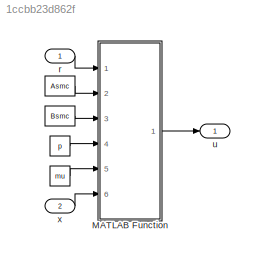
MODEL slx_1ccbb23d862f
KIND model
CONFIG AbsTol = auto
CONFIG FixedStep = auto
CONFIG MaxStep = auto
CONFIG MinStep = auto
CONFIG RelTol = 1e-3
CONFIG SampleTimeConstraint = Unconstrained
CONFIG Solver = VariableStepAuto
CONFIG SolverMode = Auto
CONFIG SolverName = VariableStepAuto
CONFIG StartTime = 0.0
CONFIG StopTime = 10.0
BLOCK [Constant]      
  Value = Asmc
BLOCK [Constant]       
  Value = Bsmc
BLOCK [Constant]         
  Value = p
BLOCK [Constant]          
  Value = mu
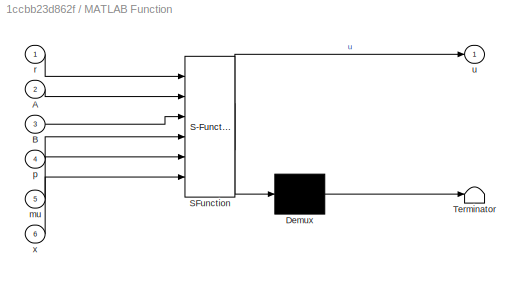
BLOCK [SubSystem] MATLAB Function
  ErrorFcn = Stateflow.Translate.translate
  PermitHierarchicalResolution = ExplicitOnly
  Ports = [6, 1]
  RequestExecContextInheritance = off
  SFBlockType = MATLAB Function
  TreatAsAtomicUnit = on
  Variant = off
BLOCK [Demux] MATLAB Function/ Demux 
  Outputs = 1
  Ports = [1, 1]
BLOCK [S-Function] MATLAB Function/ SFunction 
  EnableBusSupport = on
  FunctionName = sf_sfun
  PortCounts = [6 2]
  Ports = [6, 2]
  SFunctionDeploymentMode = off
  Tag = Stateflow S-Function SMC_linear_c 2
BLOCK [Terminator] MATLAB Function/ Terminator 
BLOCK [Inport] MATLAB Function/A
  IconDisplay = Port number
  Port = 2
BLOCK [Inport] MATLAB Function/B
  IconDisplay = Port number
  Port = 3
BLOCK [Inport] MATLAB Function/mu
  IconDisplay = Port number
  Port = 5
BLOCK [Inport] MATLAB Function/p
  IconDisplay = Port number
  Port = 4
BLOCK [Inport] MATLAB Function/r
  IconDisplay = Port number
BLOCK [Outport] MATLAB Function/u
  IconDisplay = Port number
BLOCK [Inport] MATLAB Function/x
  IconDisplay = Port number
  Port = 6
BLOCK [Inport] r
  IconDisplay = Port number
  PortDimensions = 3
BLOCK [Outport] u
  IconDisplay = Port number
BLOCK [Inport] x
  IconDisplay = Port number
  Port = 2
  PortDimensions = 3
LINE          :1 -> MATLAB Function:5
LINE         :1 -> MATLAB Function:4
LINE       :1 -> MATLAB Function:3
LINE      :1 -> MATLAB Function:2
LINE MATLAB Function:1 -> u:1
LINE r:1 -> MATLAB Function:1
LINE x:1 -> MATLAB Function:6
CHART MATLAB Function states=1 transitions=1
  STATE_LABEL 'eML_blk_kernel()'
  STATE_LABEL "SCRIPT:\nfunction u = SMC(r, A, B, p, mu, x)\n%#codegen\ne = x - r;\nu = -((p' * A * x)/(p' * B)) - (mu/(p' * B)) * sign(p'*e);"
